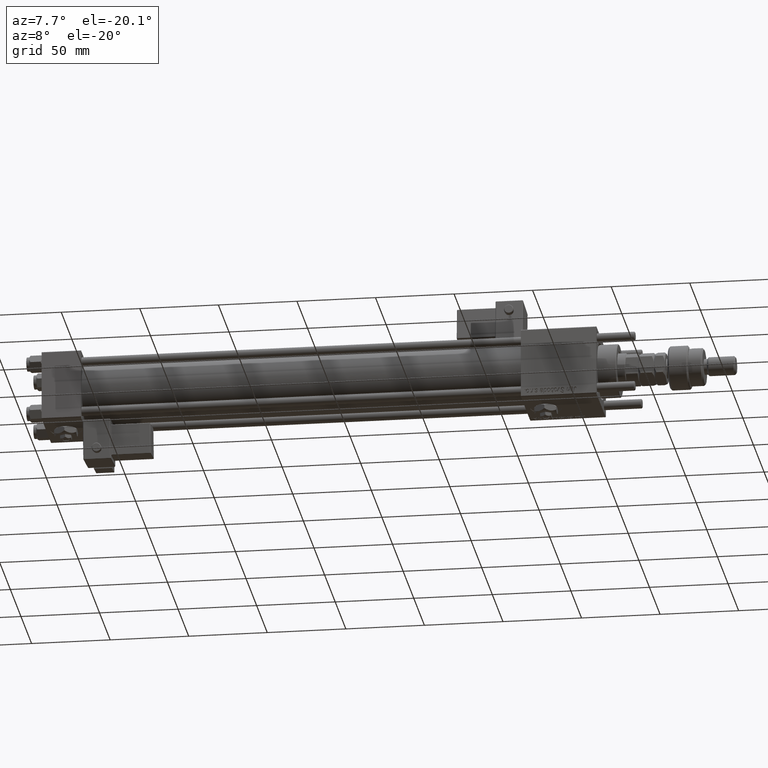
[diagram: clean part render]
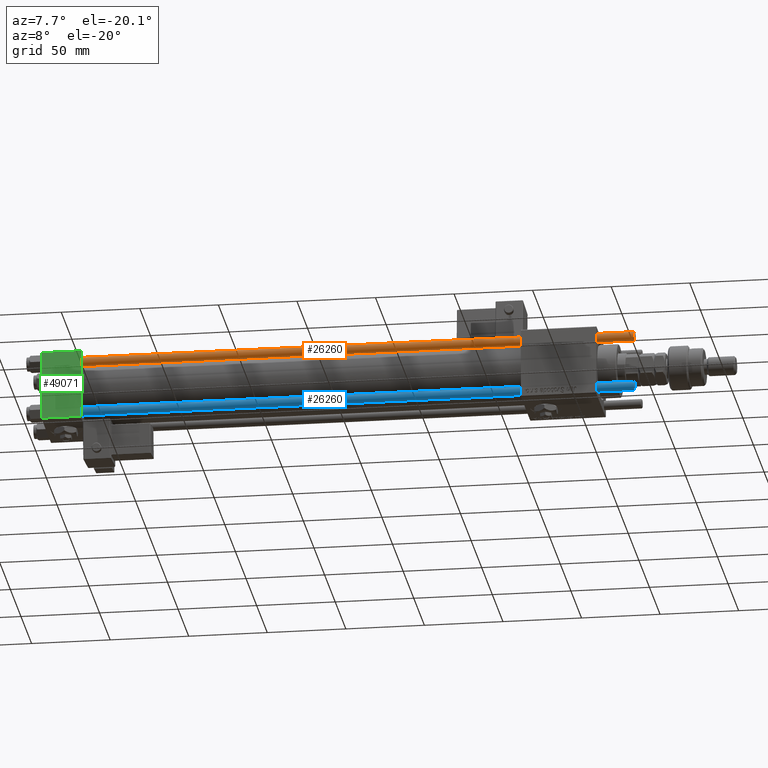
[diagram: same view with three faces highlighted in distinct colors, each labeled with its STEP entity id]
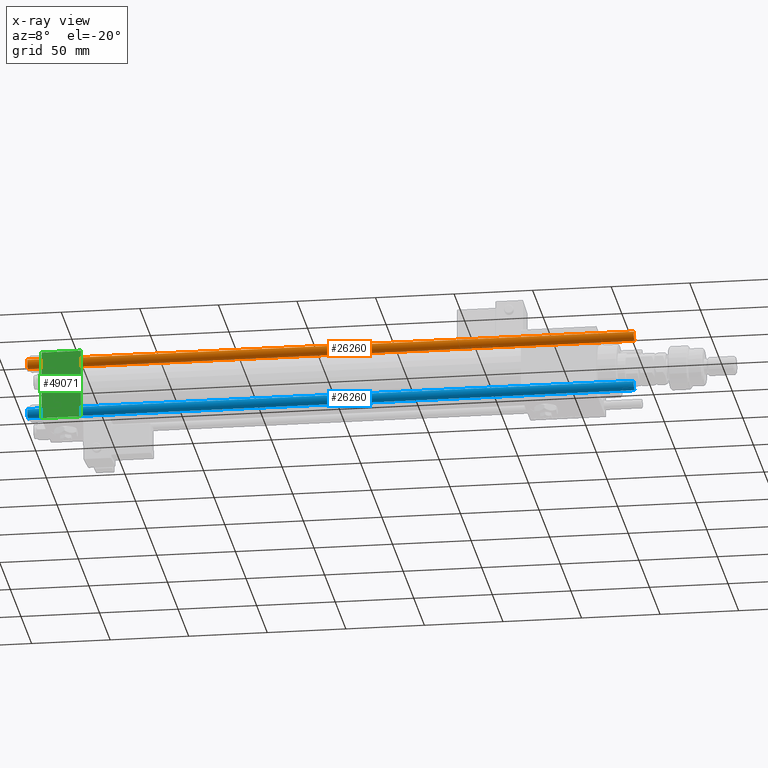
[diagram: x-ray of the same camera — body ghosted, the three highlighted faces saturated]
A machine part, auxiliary view with three faces highlighted in distinct colors.
The next image is the same camera in x-ray (body ghosted, the three faces saturated) — at least one of them is partly hidden behind the body in this view.
Their STEP definitions:

[orange] entity #26260 — the highlighted cylindrical surface (edge-blend (fillet) strip) has radius 3 mm, axis along (-1, 0, -0).
#117 = LINE ( 'NONE', #49877, #22651 ) ;
#202 = DIRECTION ( 'NONE',  ( -1.000000000000000000, 0.000000000000000000, 0.000000000000000000 ) ) ;
#5047 = DIRECTION ( 'NONE',  ( -0.000000000000000000, -0.000000000000000000, -1.000000000000000000 ) ) ;
#5192 = VERTEX_POINT ( 'NONE', #16469 ) ;
#5947 = LINE ( 'NONE', #40862, #8615 ) ;
#8046 = CARTESIAN_POINT ( 'NONE',  ( 3.000000000000000444, 3.673940397442060361E-16, 0.5000000000000004441 ) ) ;
#8114 = CARTESIAN_POINT ( 'NONE',  ( 3.000000000000000444, 3.673940397442060361E-16, 386.5000000000000568 ) ) ;
#8615 = VECTOR ( 'NONE', #15334, 1000.000000000000000 ) ;
#8802 = CARTESIAN_POINT ( 'NONE',  ( -3.000000000000000444, 0.000000000000000000, 0.5000000000000004441 ) ) ;
#12896 = EDGE_CURVE ( 'NONE', #25568, #49901, #5947, .T. ) ;
#15334 = DIRECTION ( 'NONE',  ( -0.000000000000000000, -0.000000000000000000, -1.000000000000000000 ) ) ;
#16469 = CARTESIAN_POINT ( 'NONE',  ( -3.000000000000000444, 0.000000000000000000, 386.5000000000000568 ) ) ;
#21417 = EDGE_CURVE ( 'NONE', #49901, #34131, #55244, .T. ) ;
#22651 = VECTOR ( 'NONE', #48916, 1000.000000000000000 ) ;
#23801 = ORIENTED_EDGE ( 'NONE', *, *, #30367, .T. ) ;
#24433 = CYLINDRICAL_SURFACE ( 'NONE', #38975, 3.000000000000000444 ) ;
#25568 = VERTEX_POINT ( 'NONE', #8114 ) ;
#26260 = ADVANCED_FACE ( 'NONE', ( #58065 ), #24433, .T. ) ;
#27389 = AXIS2_PLACEMENT_3D ( 'NONE', #47315, #57639, #56695 ) ;
#29007 = CARTESIAN_POINT ( 'NONE',  ( 0.000000000000000000, 0.000000000000000000, 386.5000000000000568 ) ) ;
#30367 = EDGE_CURVE ( 'NONE', #5192, #25568, #63876, .T. ) ;
#30524 = ORIENTED_EDGE ( 'NONE', *, *, #57585, .F. ) ;
#34131 = VERTEX_POINT ( 'NONE', #8802 ) ;
#36031 = AXIS2_PLACEMENT_3D ( 'NONE', #29007, #43851, #49338 ) ;
#38975 = AXIS2_PLACEMENT_3D ( 'NONE', #44157, #5047, #202 ) ;
#40862 = CARTESIAN_POINT ( 'NONE',  ( 3.000000000000000444, 3.673940397442060361E-16, 387.0000000000000000 ) ) ;
#43851 = DIRECTION ( 'NONE',  ( 0.000000000000000000, 0.000000000000000000, -1.000000000000000000 ) ) ;
#44157 = CARTESIAN_POINT ( 'NONE',  ( 0.000000000000000000, 0.000000000000000000, 387.0000000000000000 ) ) ;
#47315 = CARTESIAN_POINT ( 'NONE',  ( 0.000000000000000000, 0.000000000000000000, 0.5000000000000004441 ) ) ;
#48916 = DIRECTION ( 'NONE',  ( -0.000000000000000000, -0.000000000000000000, -1.000000000000000000 ) ) ;
#49338 = DIRECTION ( 'NONE',  ( 1.000000000000000000, 0.000000000000000000, 0.000000000000000000 ) ) ;
#49877 = CARTESIAN_POINT ( 'NONE',  ( -3.000000000000000444, 0.000000000000000000, 387.0000000000000000 ) ) ;
#49901 = VERTEX_POINT ( 'NONE', #8046 ) ;
#53476 = ORIENTED_EDGE ( 'NONE', *, *, #12896, .T. ) ;
#55244 = CIRCLE ( 'NONE', #27389, 3.000000000000000444 ) ;
#56695 = DIRECTION ( 'NONE',  ( 1.000000000000000000, 0.000000000000000000, 0.000000000000000000 ) ) ;
#57585 = EDGE_CURVE ( 'NONE', #5192, #34131, #117, .T. ) ;
#57639 = DIRECTION ( 'NONE',  ( -0.000000000000000000, -0.000000000000000000, 1.000000000000000000 ) ) ;
#58065 = FACE_OUTER_BOUND ( 'NONE', #59759, .T. ) ;
#59759 = EDGE_LOOP ( 'NONE', ( #23801, #53476, #60056, #30524 ) ) ;
#60056 = ORIENTED_EDGE ( 'NONE', *, *, #21417, .T. ) ;
#63876 = CIRCLE ( 'NONE', #36031, 3.000000000000000444 ) ;

[blue] entity #26260 — the highlighted cylindrical surface (edge-blend (fillet) strip) has radius 3 mm, axis along (1, 0, 0).
#117 = LINE ( 'NONE', #49877, #22651 ) ;
#202 = DIRECTION ( 'NONE',  ( -1.000000000000000000, 0.000000000000000000, 0.000000000000000000 ) ) ;
#5047 = DIRECTION ( 'NONE',  ( -0.000000000000000000, -0.000000000000000000, -1.000000000000000000 ) ) ;
#5192 = VERTEX_POINT ( 'NONE', #16469 ) ;
#5947 = LINE ( 'NONE', #40862, #8615 ) ;
#8046 = CARTESIAN_POINT ( 'NONE',  ( 3.000000000000000444, 3.673940397442060361E-16, 0.5000000000000004441 ) ) ;
#8114 = CARTESIAN_POINT ( 'NONE',  ( 3.000000000000000444, 3.673940397442060361E-16, 386.5000000000000568 ) ) ;
#8615 = VECTOR ( 'NONE', #15334, 1000.000000000000000 ) ;
#8802 = CARTESIAN_POINT ( 'NONE',  ( -3.000000000000000444, 0.000000000000000000, 0.5000000000000004441 ) ) ;
#12896 = EDGE_CURVE ( 'NONE', #25568, #49901, #5947, .T. ) ;
#15334 = DIRECTION ( 'NONE',  ( -0.000000000000000000, -0.000000000000000000, -1.000000000000000000 ) ) ;
#16469 = CARTESIAN_POINT ( 'NONE',  ( -3.000000000000000444, 0.000000000000000000, 386.5000000000000568 ) ) ;
#21417 = EDGE_CURVE ( 'NONE', #49901, #34131, #55244, .T. ) ;
#22651 = VECTOR ( 'NONE', #48916, 1000.000000000000000 ) ;
#23801 = ORIENTED_EDGE ( 'NONE', *, *, #30367, .T. ) ;
#24433 = CYLINDRICAL_SURFACE ( 'NONE', #38975, 3.000000000000000444 ) ;
#25568 = VERTEX_POINT ( 'NONE', #8114 ) ;
#26260 = ADVANCED_FACE ( 'NONE', ( #58065 ), #24433, .T. ) ;
#27389 = AXIS2_PLACEMENT_3D ( 'NONE', #47315, #57639, #56695 ) ;
#29007 = CARTESIAN_POINT ( 'NONE',  ( 0.000000000000000000, 0.000000000000000000, 386.5000000000000568 ) ) ;
#30367 = EDGE_CURVE ( 'NONE', #5192, #25568, #63876, .T. ) ;
#30524 = ORIENTED_EDGE ( 'NONE', *, *, #57585, .F. ) ;
#34131 = VERTEX_POINT ( 'NONE', #8802 ) ;
#36031 = AXIS2_PLACEMENT_3D ( 'NONE', #29007, #43851, #49338 ) ;
#38975 = AXIS2_PLACEMENT_3D ( 'NONE', #44157, #5047, #202 ) ;
#40862 = CARTESIAN_POINT ( 'NONE',  ( 3.000000000000000444, 3.673940397442060361E-16, 387.0000000000000000 ) ) ;
#43851 = DIRECTION ( 'NONE',  ( 0.000000000000000000, 0.000000000000000000, -1.000000000000000000 ) ) ;
#44157 = CARTESIAN_POINT ( 'NONE',  ( 0.000000000000000000, 0.000000000000000000, 387.0000000000000000 ) ) ;
#47315 = CARTESIAN_POINT ( 'NONE',  ( 0.000000000000000000, 0.000000000000000000, 0.5000000000000004441 ) ) ;
#48916 = DIRECTION ( 'NONE',  ( -0.000000000000000000, -0.000000000000000000, -1.000000000000000000 ) ) ;
#49338 = DIRECTION ( 'NONE',  ( 1.000000000000000000, 0.000000000000000000, 0.000000000000000000 ) ) ;
#49877 = CARTESIAN_POINT ( 'NONE',  ( -3.000000000000000444, 0.000000000000000000, 387.0000000000000000 ) ) ;
#49901 = VERTEX_POINT ( 'NONE', #8046 ) ;
#53476 = ORIENTED_EDGE ( 'NONE', *, *, #12896, .T. ) ;
#55244 = CIRCLE ( 'NONE', #27389, 3.000000000000000444 ) ;
#56695 = DIRECTION ( 'NONE',  ( 1.000000000000000000, 0.000000000000000000, 0.000000000000000000 ) ) ;
#57585 = EDGE_CURVE ( 'NONE', #5192, #34131, #117, .T. ) ;
#57639 = DIRECTION ( 'NONE',  ( -0.000000000000000000, -0.000000000000000000, 1.000000000000000000 ) ) ;
#58065 = FACE_OUTER_BOUND ( 'NONE', #59759, .T. ) ;
#59759 = EDGE_LOOP ( 'NONE', ( #23801, #53476, #60056, #30524 ) ) ;
#60056 = ORIENTED_EDGE ( 'NONE', *, *, #21417, .T. ) ;
#63876 = CIRCLE ( 'NONE', #36031, 3.000000000000000444 ) ;

[green] entity #49071 — the highlighted planar face has unit normal (0, 1, 0).
#259 = FACE_OUTER_BOUND ( 'NONE', #54996, .T. ) ;
#2754 = EDGE_CURVE ( 'NONE', #5331, #51611, #29884, .T. ) ;
#4028 = VECTOR ( 'NONE', #7129, 1000.000000000000000 ) ;
#4898 = VECTOR ( 'NONE', #52057, 1000.000000000000000 ) ;
#5331 = VERTEX_POINT ( 'NONE', #19016 ) ;
#6191 = CARTESIAN_POINT ( 'NONE',  ( 25.00000000000000000, -22.50000000000000000, -21.99999999999997158 ) ) ;
#6814 = CARTESIAN_POINT ( 'NONE',  ( 25.00000000000000000, -22.50000000000000000, -21.99999999999998579 ) ) ;
#7129 = DIRECTION ( 'NONE',  ( 1.000000000000000000, 0.000000000000000000, 0.000000000000000000 ) ) ;
#8717 = ORIENTED_EDGE ( 'NONE', *, *, #53083, .T. ) ;
#10471 = CARTESIAN_POINT ( 'NONE',  ( 25.00000000000000000, -22.50000000000000000, 22.50000000000000000 ) ) ;
#12625 = LINE ( 'NONE', #17169, #4898 ) ;
#15130 = DIRECTION ( 'NONE',  ( -0.000000000000000000, 1.000000000000000000, 0.000000000000000000 ) ) ;
#15255 = ORIENTED_EDGE ( 'NONE', *, *, #51650, .T. ) ;
#17169 = CARTESIAN_POINT ( 'NONE',  ( 0.000000000000000000, -22.50000000000000000, 22.50000000000000000 ) ) ;
#19016 = CARTESIAN_POINT ( 'NONE',  ( 25.00000000000000000, -22.50000000000000000, 22.00000000000000000 ) ) ;
#23127 = DIRECTION ( 'NONE',  ( -1.000000000000000000, 0.000000000000000000, 0.000000000000000000 ) ) ;
#24105 = VERTEX_POINT ( 'NONE', #60981 ) ;
#29884 = LINE ( 'NONE', #10471, #62916 ) ;
#30681 = EDGE_CURVE ( 'NONE', #24105, #51611, #36887, .T. ) ;
#32271 = ORIENTED_EDGE ( 'NONE', *, *, #2754, .F. ) ;
#36887 = LINE ( 'NONE', #6814, #4028 ) ;
#36975 = ORIENTED_EDGE ( 'NONE', *, *, #30681, .T. ) ;
#38662 = CARTESIAN_POINT ( 'NONE',  ( 25.00000000000000000, -22.50000000000000000, 22.00000000000000000 ) ) ;
#39575 = DIRECTION ( 'NONE',  ( 0.000000000000000000, 0.000000000000000000, -1.000000000000000000 ) ) ;
#39702 = PLANE ( 'NONE',  #40950 ) ;
#40950 = AXIS2_PLACEMENT_3D ( 'NONE', #59394, #15130, #54557 ) ;
#42090 = VECTOR ( 'NONE', #23127, 1000.000000000000000 ) ;
#42547 = LINE ( 'NONE', #38662, #42090 ) ;
#49071 = ADVANCED_FACE ( 'NONE', ( #259 ), #39702, .F. ) ;
#50357 = VERTEX_POINT ( 'NONE', #63233 ) ;
#51611 = VERTEX_POINT ( 'NONE', #6191 ) ;
#51650 = EDGE_CURVE ( 'NONE', #50357, #24105, #12625, .T. ) ;
#52057 = DIRECTION ( 'NONE',  ( 0.000000000000000000, 0.000000000000000000, -1.000000000000000000 ) ) ;
#53083 = EDGE_CURVE ( 'NONE', #5331, #50357, #42547, .T. ) ;
#54557 = DIRECTION ( 'NONE',  ( 0.000000000000000000, -0.000000000000000000, 1.000000000000000000 ) ) ;
#54996 = EDGE_LOOP ( 'NONE', ( #15255, #36975, #32271, #8717 ) ) ;
#59394 = CARTESIAN_POINT ( 'NONE',  ( 25.00000000000000000, -22.50000000000000000, 22.50000000000000000 ) ) ;
#60981 = CARTESIAN_POINT ( 'NONE',  ( 0.000000000000000000, -22.50000000000000000, -21.99999999999997158 ) ) ;
#62916 = VECTOR ( 'NONE', #39575, 1000.000000000000000 ) ;
#63233 = CARTESIAN_POINT ( 'NONE',  ( 0.000000000000000000, -22.50000000000000000, 22.00000000000000000 ) ) ;